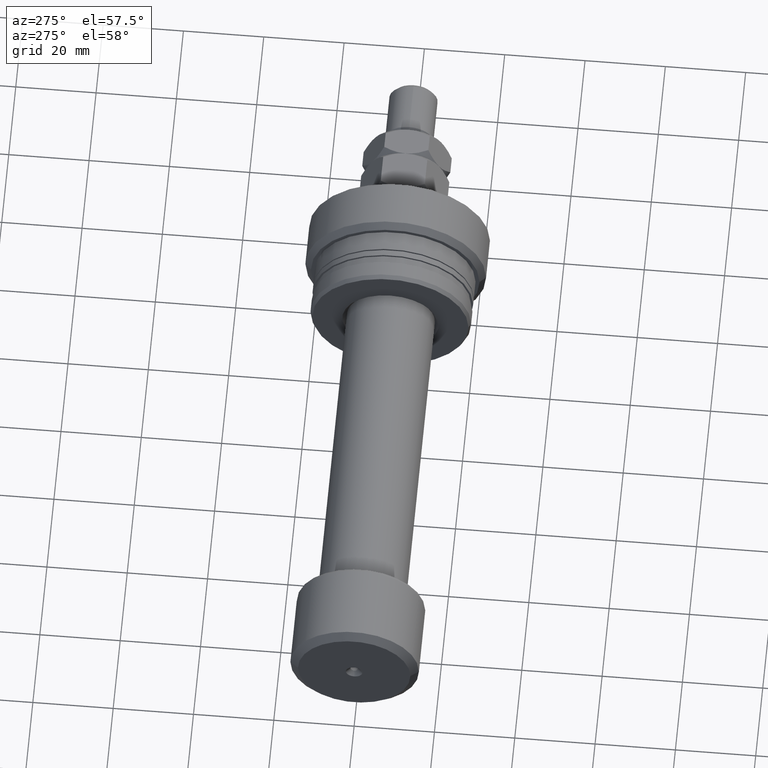
[diagram: clean part render]
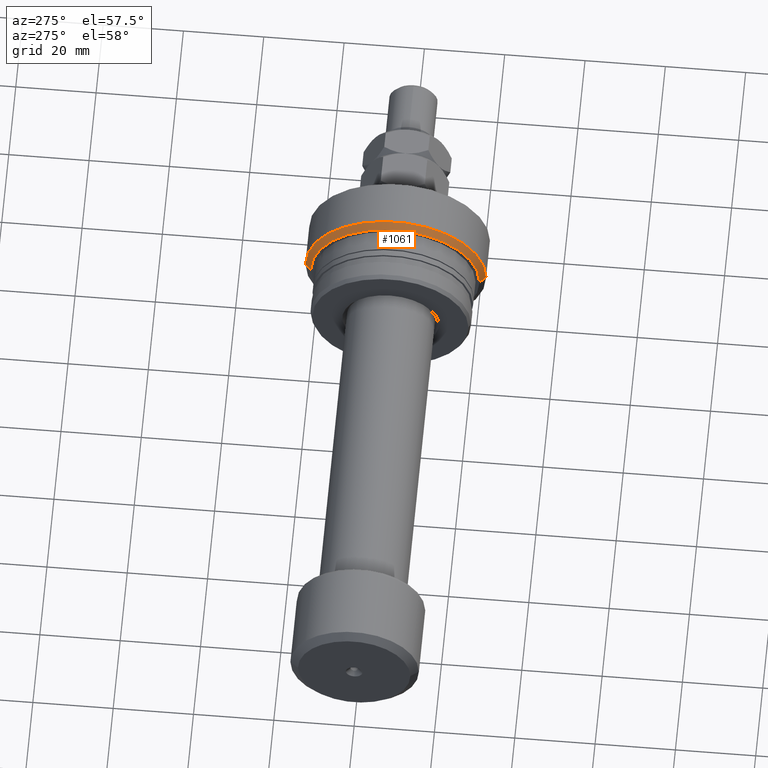
[diagram: same view with one face highlighted and labeled with its STEP entity id]
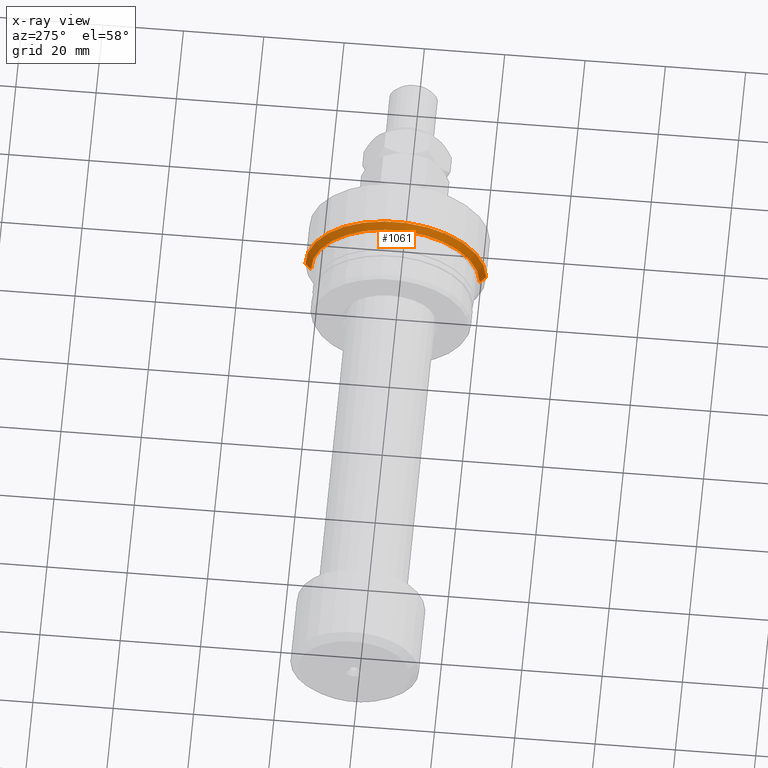
[diagram: x-ray of the same camera — body ghosted, the highlighted face saturated]
A machine part, auxiliary view. The second image highlights one B-rep face of the part: STEP entity #1061.
The next image is the same camera in x-ray: the body ghosted, the highlighted face saturated — about 0% of this face is hidden behind the body in this view.
In plain terms, the highlighted conical surface has half-angle 45 deg.
Its self-contained STEP definition (entity closure, byte-faithful):
#8 = EDGE_CURVE ( 'NONE', #3305, #1246, #3302, .T. ) ;
#42 = CARTESIAN_POINT ( 'NONE',  ( -13.99999999999999822, -21.00000000000068923, 2.571758278209523308E-15 ) ) ;
#224 = ORIENTED_EDGE ( 'NONE', *, *, #1826, .T. ) ;
#636 = DIRECTION ( 'NONE',  ( 0.7071067811865491270, -0.7071067811865459074, 8.659560562354902043E-17 ) ) ;
#720 = LINE ( 'NONE', #42, #1236 ) ;
#937 = VERTEX_POINT ( 'NONE', #3132 ) ;
#1061 = ADVANCED_FACE ( 'NONE', ( #2928 ), #3367, .T. ) ;
#1146 = EDGE_LOOP ( 'NONE', ( #1775, #224, #2513, #1502 ) ) ;
#1236 = VECTOR ( 'NONE', #636, 1000.000000000000000 ) ;
#1246 = VERTEX_POINT ( 'NONE', #2337 ) ;
#1331 = CARTESIAN_POINT ( 'NONE',  ( -13.99999999999999822, -21.00000000000068923, 2.663606788145532860E-15 ) ) ;
#1502 = ORIENTED_EDGE ( 'NONE', *, *, #1877, .F. ) ;
#1622 = AXIS2_PLACEMENT_3D ( 'NONE', #2358, #2320, #3291 ) ;
#1630 = AXIS2_PLACEMENT_3D ( 'NONE', #3750, #2300, #2904 ) ;
#1670 = CARTESIAN_POINT ( 'NONE',  ( -13.99999999999994316, 21.00000000000064659, 0.000000000000000000 ) ) ;
#1775 = ORIENTED_EDGE ( 'NONE', *, *, #8, .F. ) ;
#1825 = VECTOR ( 'NONE', #2508, 1000.000000000000000 ) ;
#1826 = EDGE_CURVE ( 'NONE', #3305, #3095, #720, .T. ) ;
#1877 = EDGE_CURVE ( 'NONE', #1246, #937, #2814, .T. ) ;
#2210 = AXIS2_PLACEMENT_3D ( 'NONE', #3383, #3628, #2410 ) ;
#2300 = DIRECTION ( 'NONE',  ( 1.000000000000000000, -1.333885945136072597E-15, 0.000000000000000000 ) ) ;
#2320 = DIRECTION ( 'NONE',  ( -1.000000000000000000, 1.333885945136072597E-15, -0.000000000000000000 ) ) ;
#2337 = CARTESIAN_POINT ( 'NONE',  ( -13.99999999999994316, 21.00000000000064659, 0.000000000000000000 ) ) ;
#2358 = CARTESIAN_POINT ( 'NONE',  ( -12.50000000000065370, -2.371652247300287340E-14, 0.000000000000000000 ) ) ;
#2410 = DIRECTION ( 'NONE',  ( -1.321694076934668198E-15, -1.000000000000000000, 0.000000000000000000 ) ) ;
#2443 = CARTESIAN_POINT ( 'NONE',  ( -12.50000000000068212, -22.49999999999999645, 2.755455298081541622E-15 ) ) ;
#2508 = DIRECTION ( 'NONE',  ( 0.7071067811865507924, 0.7071067811865441310, 0.000000000000000000 ) ) ;
#2513 = ORIENTED_EDGE ( 'NONE', *, *, #3837, .T. ) ;
#2586 = CIRCLE ( 'NONE', #1622, 22.49999999999997513 ) ;
#2814 = LINE ( 'NONE', #1670, #1825 ) ;
#2904 = DIRECTION ( 'NONE',  ( 1.321694076934668198E-15, 1.000000000000000000, 0.000000000000000000 ) ) ;
#2928 = FACE_OUTER_BOUND ( 'NONE', #1146, .T. ) ;
#3095 = VERTEX_POINT ( 'NONE', #2443 ) ;
#3132 = CARTESIAN_POINT ( 'NONE',  ( -12.50000000000062350, 22.49999999999995026, 0.000000000000000000 ) ) ;
#3291 = DIRECTION ( 'NONE',  ( -1.310679959626922274E-15, -1.000000000000000000, 0.000000000000000000 ) ) ;
#3302 = CIRCLE ( 'NONE', #2210, 21.00000000000066791 ) ;
#3305 = VERTEX_POINT ( 'NONE', #1331 ) ;
#3367 = CONICAL_SURFACE ( 'NONE', #1630, 21.00000000000066791, 0.7853981633974447263 ) ;
#3383 = CARTESIAN_POINT ( 'NONE',  ( -13.99999999999997158, -2.171569355529967032E-14, 0.000000000000000000 ) ) ;
#3628 = DIRECTION ( 'NONE',  ( -1.000000000000000000, 1.333885945136072597E-15, -0.000000000000000000 ) ) ;
#3750 = CARTESIAN_POINT ( 'NONE',  ( -13.99999999999997158, -2.171569355529967032E-14, 0.000000000000000000 ) ) ;
#3837 = EDGE_CURVE ( 'NONE', #3095, #937, #2586, .T. ) ;